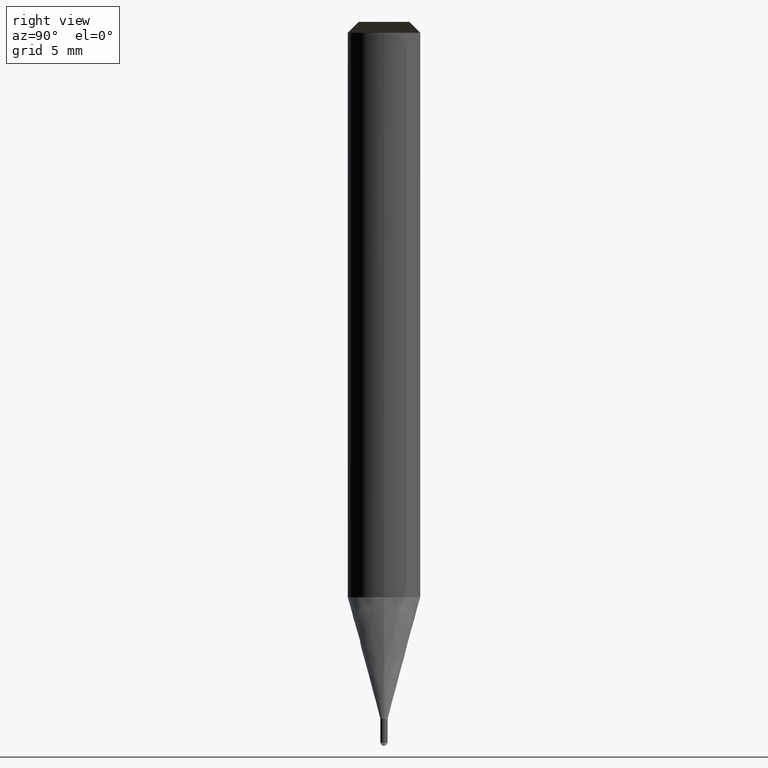
[diagram: clean part render]
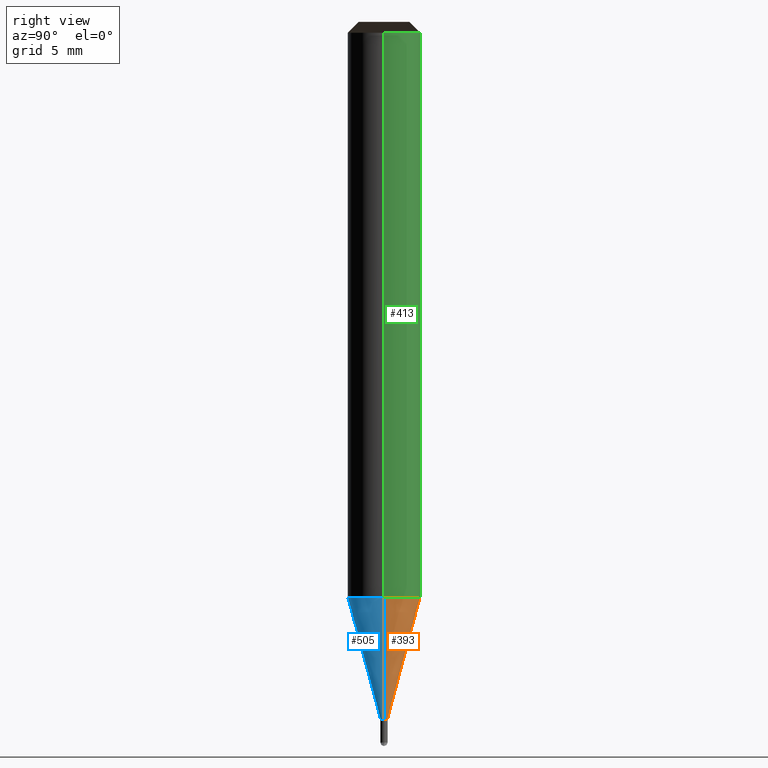
[diagram: same view with three faces highlighted in distinct colors, each labeled with its STEP entity id]
A machine part, right view with three faces highlighted in distinct colors.
Their STEP definitions:

[orange] entity #393 — the highlighted face is a freeform B-spline surface patch.
#192=CARTESIAN_POINT('',(0.2,0.0,-6.717691453624));
#193=CARTESIAN_POINT('',(0.2,0.2,-6.717691453624));
#194=CARTESIAN_POINT('',(0.0,0.2,-6.717691453624));
#195=CARTESIAN_POINT('',(-0.2,0.2,-6.717691453624));
#196=CARTESIAN_POINT('',(-0.2,0.0,-6.717691453624));
#197=CARTESIAN_POINT('',(2.0,0.0,0.0));
#198=CARTESIAN_POINT('',(2.0,2.0,0.0));
#199=CARTESIAN_POINT('',(0.0,2.0,0.0));
#200=CARTESIAN_POINT('',(-2.0,2.0,0.0));
#201=CARTESIAN_POINT('',(-2.0,0.0,0.0));
#374=(
BOUNDED_SURFACE()
B_SPLINE_SURFACE(1,2,(
(#192,#193,#194,#195,#196),
(#197,#198,#199,#200,#201)
), .UNSPECIFIED.,.F.,.F.,.F.)
B_SPLINE_SURFACE_WITH_KNOTS((2,2),(3,2,3),(
0.0,1.0),(
0.0,0.5,1.0), .UNSPECIFIED.)
GEOMETRIC_REPRESENTATION_ITEM()
RATIONAL_B_SPLINE_SURFACE(((1.0,0.707106781187,1.0,0.707106781187,1.0),
(1.0,0.707106781187,1.0,0.707106781187,1.0)
))
REPRESENTATION_ITEM('')
SURFACE()
);
#375=(
BOUNDED_CURVE()
B_SPLINE_CURVE(2,(#197,#198,#199,#200,#201),.UNSPECIFIED.,.F.,.F.)
B_SPLINE_CURVE_WITH_KNOTS((3,2,3),
(0.0,0.5,1.0),.UNSPECIFIED.)
CURVE()
GEOMETRIC_REPRESENTATION_ITEM()
RATIONAL_B_SPLINE_CURVE((1.0,0.707106781187,1.0,0.707106781187,1.0))
REPRESENTATION_ITEM('')
);
#376=(
BOUNDED_CURVE()
B_SPLINE_CURVE(1,(#201,#196),.UNSPECIFIED.,.F.,.F.)
B_SPLINE_CURVE_WITH_KNOTS((2,2),
(0.0,1.0),.UNSPECIFIED.)
CURVE()
GEOMETRIC_REPRESENTATION_ITEM()
RATIONAL_B_SPLINE_CURVE((1.0,1.0))
REPRESENTATION_ITEM('')
);
#377=(
BOUNDED_CURVE()
B_SPLINE_CURVE(2,(#196,#195,#194,#193,#192),.UNSPECIFIED.,.F.,.F.)
B_SPLINE_CURVE_WITH_KNOTS((3,2,3),
(0.0,0.5,1.0),.UNSPECIFIED.)
CURVE()
GEOMETRIC_REPRESENTATION_ITEM()
RATIONAL_B_SPLINE_CURVE((1.0,0.707106781187,1.0,0.707106781187,1.0))
REPRESENTATION_ITEM('')
);
#378=(
BOUNDED_CURVE()
B_SPLINE_CURVE(1,(#192,#197),.UNSPECIFIED.,.F.,.F.)
B_SPLINE_CURVE_WITH_KNOTS((2,2),
(0.0,1.0),.UNSPECIFIED.)
CURVE()
GEOMETRIC_REPRESENTATION_ITEM()
RATIONAL_B_SPLINE_CURVE((1.0,1.0))
REPRESENTATION_ITEM('')
);
#379=VERTEX_POINT('',#192);
#380=VERTEX_POINT('',#196);
#381=VERTEX_POINT('',#197);
#382=VERTEX_POINT('',#201);
#383=EDGE_CURVE('',#381,#382,#375,.T.);
#384=EDGE_CURVE('',#382,#380,#376,.T.);
#385=EDGE_CURVE('',#380,#379,#377,.T.);
#386=EDGE_CURVE('',#379,#381,#378,.T.);
#387=ORIENTED_EDGE('',*,*,#383,.T.);
#388=ORIENTED_EDGE('',*,*,#384,.T.);
#389=ORIENTED_EDGE('',*,*,#385,.T.);
#390=ORIENTED_EDGE('',*,*,#386,.T.);
#391=EDGE_LOOP('',(#387,#388,#389,#390));
#392=FACE_OUTER_BOUND('',#391,.T.);
#393=ADVANCED_FACE('',(#392),#374,.T.);

[blue] entity #505 — the highlighted face is a freeform B-spline surface patch.
#192=CARTESIAN_POINT('',(0.2,0.0,-6.717691453624));
#196=CARTESIAN_POINT('',(-0.2,0.0,-6.717691453624));
#197=CARTESIAN_POINT('',(2.0,0.0,0.0));
#201=CARTESIAN_POINT('',(-2.0,0.0,0.0));
#213=CARTESIAN_POINT('',(-0.2,-0.2,-6.717691453624));
#214=CARTESIAN_POINT('',(0.0,-0.2,-6.717691453624));
#215=CARTESIAN_POINT('',(0.2,-0.2,-6.717691453624));
#216=CARTESIAN_POINT('',(-2.0,-2.0,0.0));
#217=CARTESIAN_POINT('',(0.0,-2.0,0.0));
#218=CARTESIAN_POINT('',(2.0,-2.0,0.0));
#486=(
BOUNDED_SURFACE()
B_SPLINE_SURFACE(1,2,(
(#196,#213,#214,#215,#192),
(#201,#216,#217,#218,#197)
), .UNSPECIFIED.,.F.,.F.,.F.)
B_SPLINE_SURFACE_WITH_KNOTS((2,2),(3,2,3),(
0.0,1.0),(
0.0,0.5,1.0), .UNSPECIFIED.)
GEOMETRIC_REPRESENTATION_ITEM()
RATIONAL_B_SPLINE_SURFACE(((1.0,0.707106781187,1.0,0.707106781187,1.0),
(1.0,0.707106781187,1.0,0.707106781187,1.0)
))
REPRESENTATION_ITEM('')
SURFACE()
);
#487=(
BOUNDED_CURVE()
B_SPLINE_CURVE(1,(#201,#196),.UNSPECIFIED.,.F.,.F.)
B_SPLINE_CURVE_WITH_KNOTS((2,2),
(0.0,1.0),.UNSPECIFIED.)
CURVE()
GEOMETRIC_REPRESENTATION_ITEM()
RATIONAL_B_SPLINE_CURVE((1.0,1.0))
REPRESENTATION_ITEM('')
);
#488=(
BOUNDED_CURVE()
B_SPLINE_CURVE(2,(#196,#213,#214,#215,#192),.UNSPECIFIED.,.F.,.F.)
B_SPLINE_CURVE_WITH_KNOTS((3,2,3),
(0.0,0.5,1.0),.UNSPECIFIED.)
CURVE()
GEOMETRIC_REPRESENTATION_ITEM()
RATIONAL_B_SPLINE_CURVE((1.0,0.707106781187,1.0,0.707106781187,1.0))
REPRESENTATION_ITEM('')
);
#489=(
BOUNDED_CURVE()
B_SPLINE_CURVE(1,(#192,#197),.UNSPECIFIED.,.F.,.F.)
B_SPLINE_CURVE_WITH_KNOTS((2,2),
(0.0,1.0),.UNSPECIFIED.)
CURVE()
GEOMETRIC_REPRESENTATION_ITEM()
RATIONAL_B_SPLINE_CURVE((1.0,1.0))
REPRESENTATION_ITEM('')
);
#490=(
BOUNDED_CURVE()
B_SPLINE_CURVE(2,(#197,#218,#217,#216,#201),.UNSPECIFIED.,.F.,.F.)
B_SPLINE_CURVE_WITH_KNOTS((3,2,3),
(0.0,0.5,1.0),.UNSPECIFIED.)
CURVE()
GEOMETRIC_REPRESENTATION_ITEM()
RATIONAL_B_SPLINE_CURVE((1.0,0.707106781187,1.0,0.707106781187,1.0))
REPRESENTATION_ITEM('')
);
#491=VERTEX_POINT('',#192);
#492=VERTEX_POINT('',#196);
#493=VERTEX_POINT('',#197);
#494=VERTEX_POINT('',#201);
#495=EDGE_CURVE('',#494,#492,#487,.T.);
#496=EDGE_CURVE('',#492,#491,#488,.T.);
#497=EDGE_CURVE('',#491,#493,#489,.T.);
#498=EDGE_CURVE('',#493,#494,#490,.T.);
#499=ORIENTED_EDGE('',*,*,#495,.T.);
#500=ORIENTED_EDGE('',*,*,#496,.T.);
#501=ORIENTED_EDGE('',*,*,#497,.T.);
#502=ORIENTED_EDGE('',*,*,#498,.T.);
#503=EDGE_LOOP('',(#499,#500,#501,#502));
#504=FACE_OUTER_BOUND('',#503,.T.);
#505=ADVANCED_FACE('',(#504),#486,.T.);

[green] entity #413 — the highlighted face is a freeform B-spline surface patch.
#197=CARTESIAN_POINT('',(2.0,0.0,0.0));
#198=CARTESIAN_POINT('',(2.0,2.0,0.0));
#199=CARTESIAN_POINT('',(0.0,2.0,0.0));
#200=CARTESIAN_POINT('',(-2.0,2.0,0.0));
#201=CARTESIAN_POINT('',(-2.0,0.0,0.0));
#202=CARTESIAN_POINT('',(2.0,0.0,31.18));
#203=CARTESIAN_POINT('',(2.0,2.0,31.18));
#204=CARTESIAN_POINT('',(0.0,2.0,31.18));
#205=CARTESIAN_POINT('',(-2.0,2.0,31.18));
#206=CARTESIAN_POINT('',(-2.0,0.0,31.18));
#394=(
BOUNDED_SURFACE()
B_SPLINE_SURFACE(1,2,(
(#197,#198,#199,#200,#201),
(#202,#203,#204,#205,#206)
), .UNSPECIFIED.,.F.,.F.,.F.)
B_SPLINE_SURFACE_WITH_KNOTS((2,2),(3,2,3),(
0.0,1.0),(
0.0,0.5,1.0), .UNSPECIFIED.)
GEOMETRIC_REPRESENTATION_ITEM()
RATIONAL_B_SPLINE_SURFACE(((1.0,0.707106781187,1.0,0.707106781187,1.0),
(1.0,0.707106781187,1.0,0.707106781187,1.0)
))
REPRESENTATION_ITEM('')
SURFACE()
);
#395=(
BOUNDED_CURVE()
B_SPLINE_CURVE(2,(#202,#203,#204,#205,#206),.UNSPECIFIED.,.F.,.F.)
B_SPLINE_CURVE_WITH_KNOTS((3,2,3),
(0.0,0.5,1.0),.UNSPECIFIED.)
CURVE()
GEOMETRIC_REPRESENTATION_ITEM()
RATIONAL_B_SPLINE_CURVE((1.0,0.707106781187,1.0,0.707106781187,1.0))
REPRESENTATION_ITEM('')
);
#396=(
BOUNDED_CURVE()
B_SPLINE_CURVE(1,(#206,#201),.UNSPECIFIED.,.F.,.F.)
B_SPLINE_CURVE_WITH_KNOTS((2,2),
(0.0,1.0),.UNSPECIFIED.)
CURVE()
GEOMETRIC_REPRESENTATION_ITEM()
RATIONAL_B_SPLINE_CURVE((1.0,1.0))
REPRESENTATION_ITEM('')
);
#397=(
BOUNDED_CURVE()
B_SPLINE_CURVE(2,(#201,#200,#199,#198,#197),.UNSPECIFIED.,.F.,.F.)
B_SPLINE_CURVE_WITH_KNOTS((3,2,3),
(0.0,0.5,1.0),.UNSPECIFIED.)
CURVE()
GEOMETRIC_REPRESENTATION_ITEM()
RATIONAL_B_SPLINE_CURVE((1.0,0.707106781187,1.0,0.707106781187,1.0))
REPRESENTATION_ITEM('')
);
#398=(
BOUNDED_CURVE()
B_SPLINE_CURVE(1,(#197,#202),.UNSPECIFIED.,.F.,.F.)
B_SPLINE_CURVE_WITH_KNOTS((2,2),
(0.0,1.0),.UNSPECIFIED.)
CURVE()
GEOMETRIC_REPRESENTATION_ITEM()
RATIONAL_B_SPLINE_CURVE((1.0,1.0))
REPRESENTATION_ITEM('')
);
#399=VERTEX_POINT('',#197);
#400=VERTEX_POINT('',#201);
#401=VERTEX_POINT('',#202);
#402=VERTEX_POINT('',#206);
#403=EDGE_CURVE('',#401,#402,#395,.T.);
#404=EDGE_CURVE('',#402,#400,#396,.T.);
#405=EDGE_CURVE('',#400,#399,#397,.T.);
#406=EDGE_CURVE('',#399,#401,#398,.T.);
#407=ORIENTED_EDGE('',*,*,#403,.T.);
#408=ORIENTED_EDGE('',*,*,#404,.T.);
#409=ORIENTED_EDGE('',*,*,#405,.T.);
#410=ORIENTED_EDGE('',*,*,#406,.T.);
#411=EDGE_LOOP('',(#407,#408,#409,#410));
#412=FACE_OUTER_BOUND('',#411,.T.);
#413=ADVANCED_FACE('',(#412),#394,.T.);